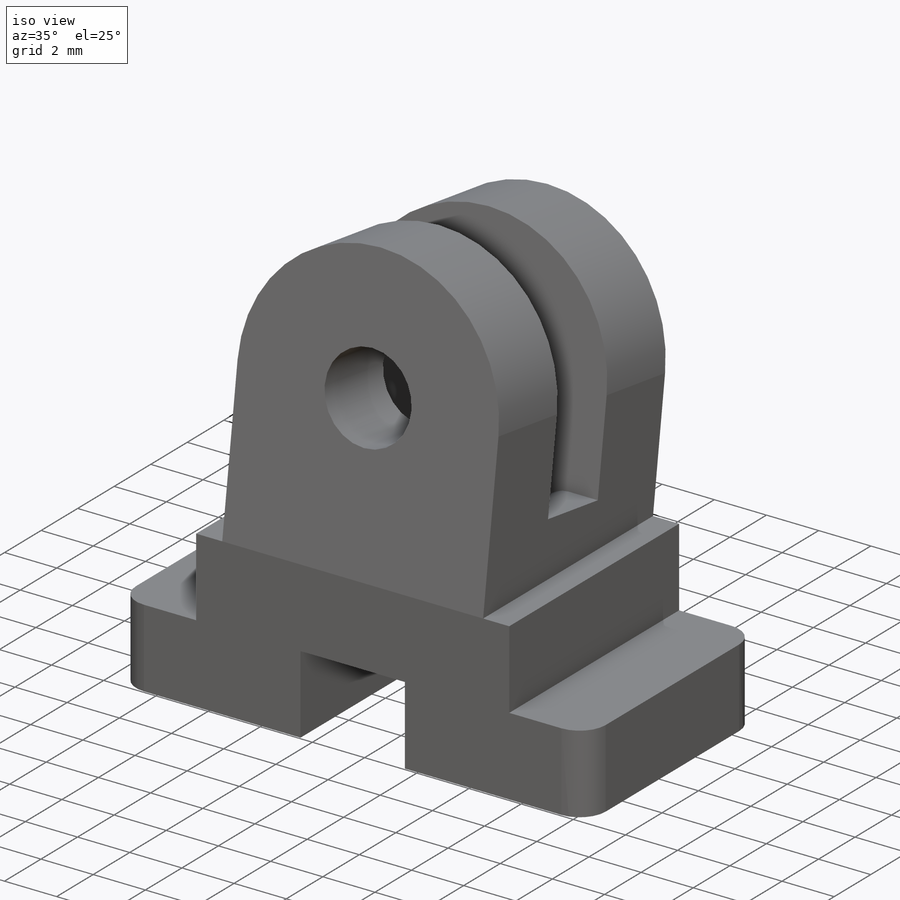
[diagram: iso view]
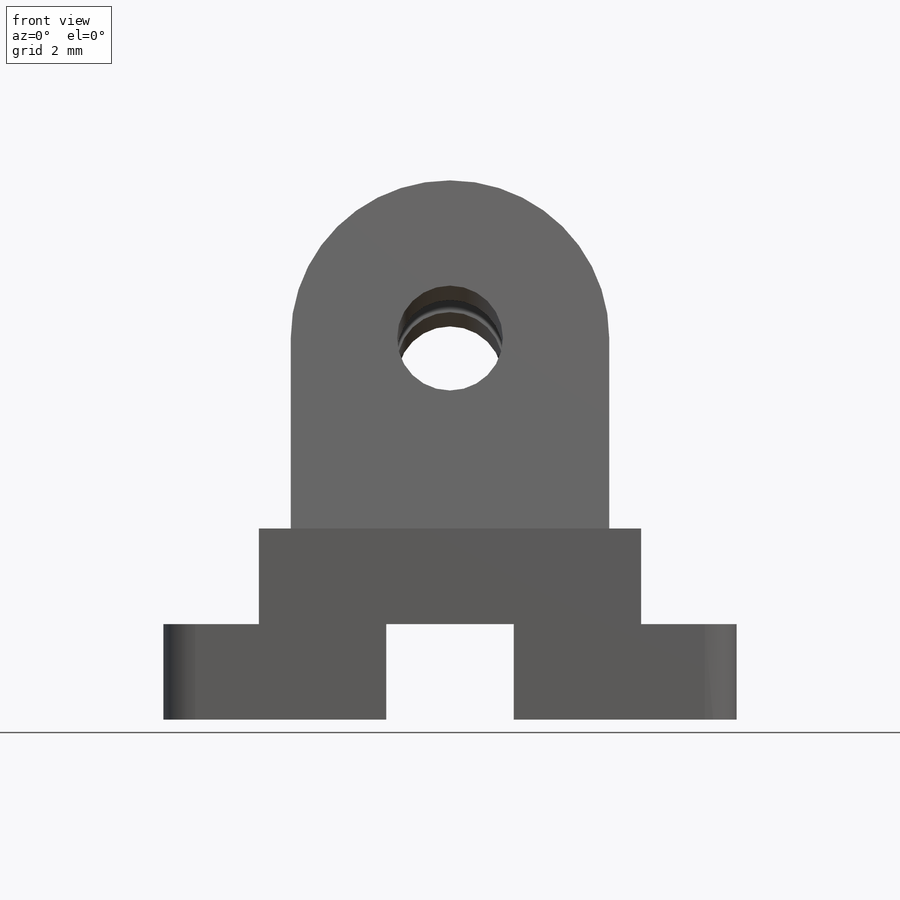
[diagram: front view]
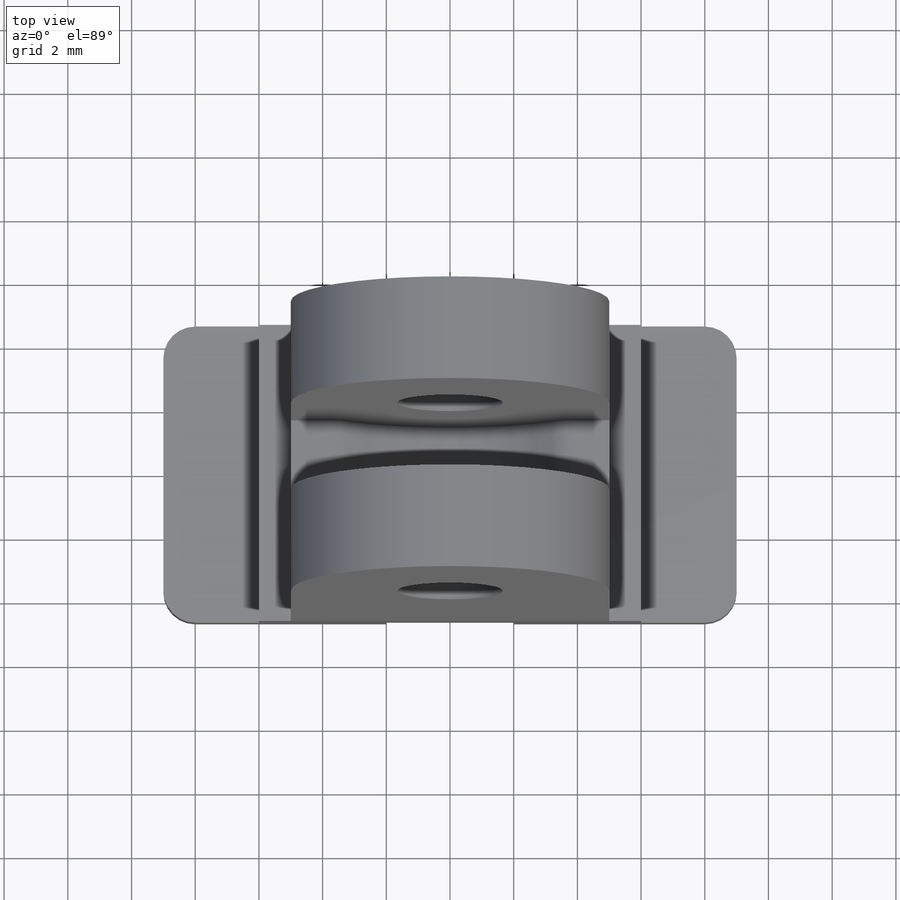
[diagram: top view]
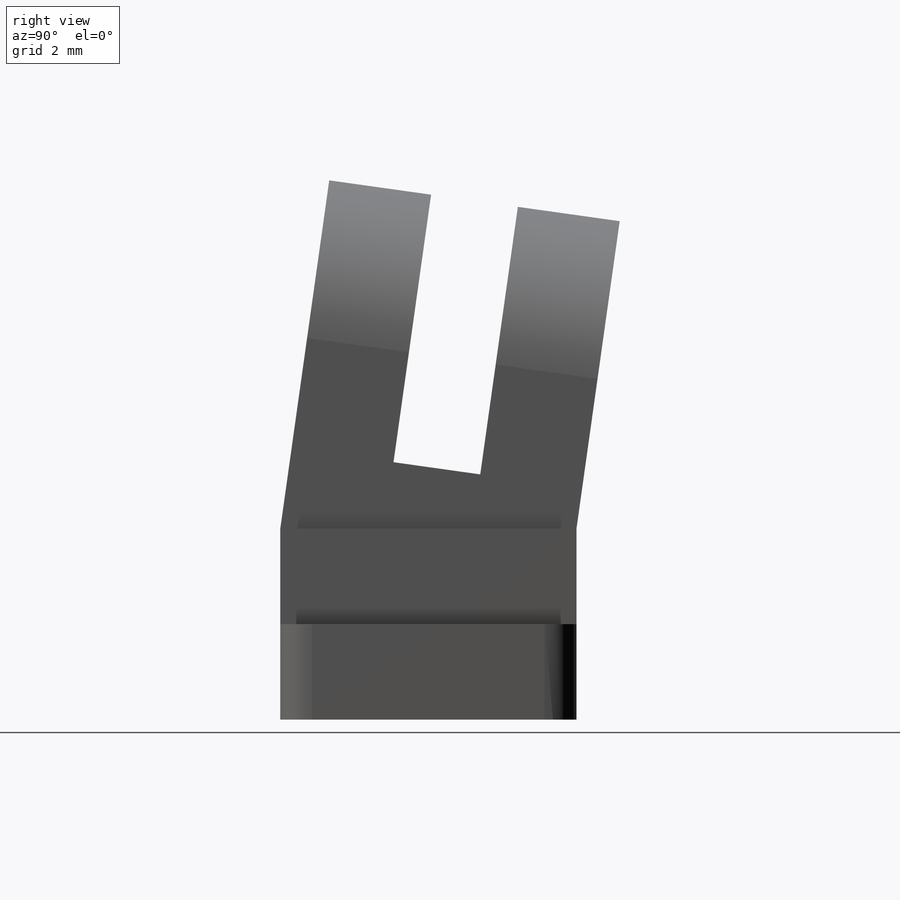
[diagram: right view]
SOLIDWORKS PART (.sldprt)
format: sldprt  version: not decoded by parser v0  size: 458,752 bytes
history: native  units: mm
features: sketch x8, extrude x5, cut_extrude x3, fillet x2, material x1 + 1 further entry (+17 scaffold rows collapsed; 3 parser-record rows omitted)
feature tree (40):
  scaffold x17  (default folders/planes/origin — collapsed)
  material  "ABS"
  "params_print"
  parser-record x3  (decoder bookkeeping rows leaked as tree rows — omitted from the tree; the rows remain in map.json)
  sketch  "Sketch1"  dims[D1=9.3mm D2=18.0mm D3=4.65mm D4=9.0mm]
  extrude  "Base"  Depth=3mm
  sketch  "Sketch2"  dims[D1=12.0mm D2=6.0mm D3=~1.388513mm D4=2.7mm angle=8.0deg]
  extrude  "Base Mid"  Depth=3mm
  sketch  "Sketch3"  dims[c1.D1=~7.285326mm c2.D1=172.0deg c3.D1=~7.35111mm c4.D1=172.0deg c5.D1=~6.308053mm c6.D1=8.0deg c6.D2=~6.308053mm c7.D2=8.0deg c7.D3=7.0mm c7.D4=10.2mm c8.D3=~3.337203mm c8.D2=~7.287449mm]
  extrude  "Pulley Head"  Depth=5mm
  sketch  "Sketch4"  dims[D3=3.175mm D1=5.0mm D2=5.0mm]
  cut_extrude  "Frame"  [1 undecoded]
  sketch  "Sketch5"  dims[D1=4.0mm]
  cut_extrude  "Base Slot"  [1 undecoded]
  sketch  "Sketch8"  dims[D1=3.0mm D2=9.3mm]
  extrude  "Base Fill"  [1 undecoded]
  sketch  "Sketch7"  dims[D1=0.075mm]
  cut_extrude  "Clearance - Pin Fit"  [1 undecoded]
  fillet  "Corner Allowances"  Radius=1mm
  sketch  "Sketch11"  dims[c1.D1=4.925mm c1.D2=~3.59705mm c2.D2=90.0deg]
  extrude  "Filament Block"  [1 undecoded]
  fillet  "Contouring"  Radius=1mm
decode coverage: 13 of 18 modeling features carry decoded parameters; 1 rows unclassified (native names shown)
note: ~ marks probable driven/reference dimensions
note: 5 parameter values undecoded
summary: no parameter record found for 5 features
note: suppression state not decoded; provenance and decode notes live in map.json
